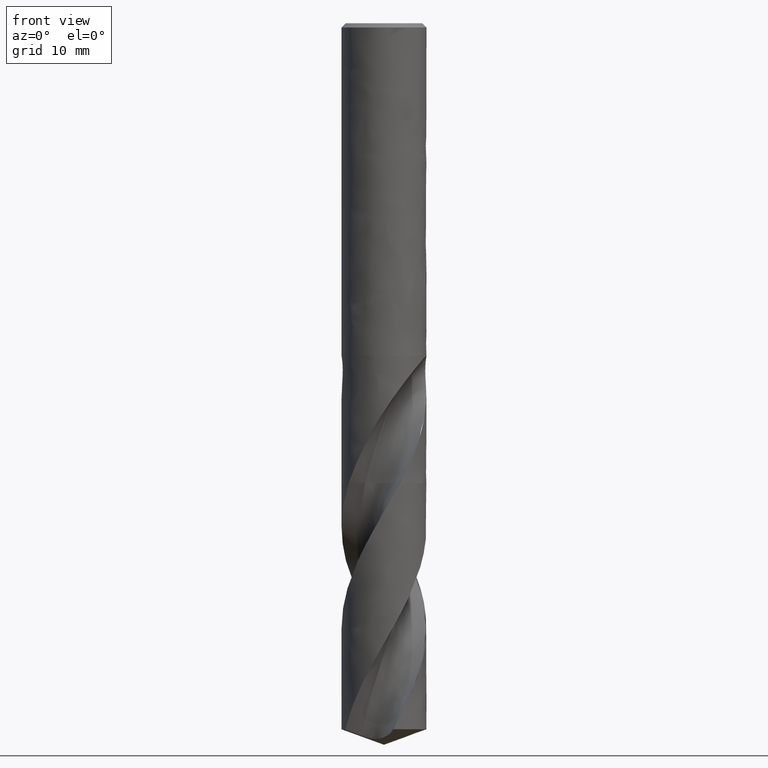
[diagram: clean part render]
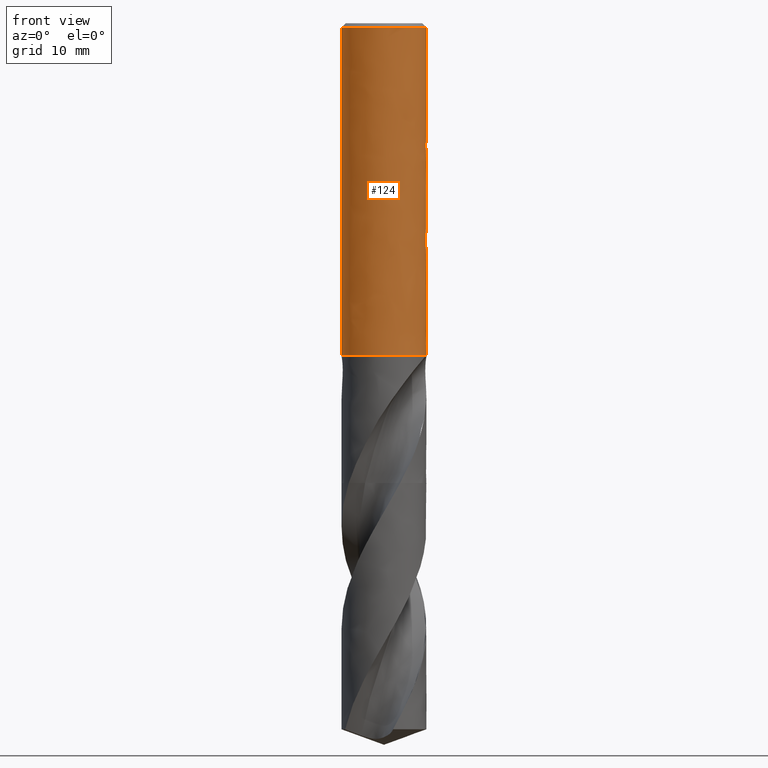
[diagram: same view with one face highlighted and labeled with its STEP entity id]
A machine part, front view. The second image highlights one B-rep face of the part: STEP entity #124.
In plain terms, the highlighted face is a freeform B-spline surface patch.
Its self-contained STEP definition (entity closure, byte-faithful):
#73 = VERTEX_POINT('', #74);
#74 = CARTESIAN_POINT('', (-6., 4.04133443718627E-16, -0.600000000000001));
#90 = EDGE_CURVE('', #73, #73, #91, .T.);
#91 = CIRCLE('', #92, 6.);
#92 = AXIS2_PLACEMENT_3D('', #93, #94, #95);
#93 = CARTESIAN_POINT('', (2.24963967399277E-33, 3.67394039744209E-17, -0.600000000000001));
#94 = DIRECTION('', (3.74939945665464E-33, 6.12323399573677E-17, -1.));
#95 = DIRECTION('', (-1., 6.12323399573677E-17, 0.));
#124 = ADVANCED_FACE('', (#125, #226), #421, .T.);
#125 = FACE_OUTER_BOUND('', #126, .T.);
#126 = EDGE_LOOP('', (#127, #141, #150, #156, #157, #158, #167, #179, #187, #199, #208, #220));
#127 = ORIENTED_EDGE('', *, *, #128, .T.);
#128 = EDGE_CURVE('', #129, #131, #133, .T.);
#129 = VERTEX_POINT('', #130);
#130 = CARTESIAN_POINT('', (-5.98062875212973, 0.481746540412264, -46.98));
#131 = VERTEX_POINT('', #132);
#132 = CARTESIAN_POINT('', (-5.99775532201467, 0.164106968909737, -47.));
#133 = B_SPLINE_CURVE_WITH_KNOTS('', 3, (#134, #135, #136, #137, #138, #139, #140), .UNSPECIFIED., .F., .U., (4, 3, 4), (0., 0.196514336188345, 0.318911880374783), .UNSPECIFIED.);
#134 = CARTESIAN_POINT('', (-5.98062875212918, 0.481746540419091, -46.98));
#135 = CARTESIAN_POINT('', (-5.98588819998738, 0.416453274267725, -46.9800603316474));
#136 = CARTESIAN_POINT('', (-5.99007966787005, 0.351014559865109, -46.9824559364154));
#137 = CARTESIAN_POINT('', (-5.99319043989494, 0.285776750544808, -46.9874786218417));
#138 = CARTESIAN_POINT('', (-5.99512796192898, 0.24514384913015, -46.9906069654187));
#139 = CARTESIAN_POINT('', (-5.99664866857087, 0.204552762444457, -46.9947572615891));
#140 = CARTESIAN_POINT('', (-5.99775532201467, 0.164106968909759, -47.));
#141 = ORIENTED_EDGE('', *, *, #142, .F.);
#142 = EDGE_CURVE('', #143, #131, #145, .T.);
#143 = VERTEX_POINT('', #144);
#144 = CARTESIAN_POINT('', (-6., 3.24531401774049E-15, -47.));
#145 = CIRCLE('', #146, 6.);
#146 = AXIS2_PLACEMENT_3D('', #147, #148, #149);
#147 = CARTESIAN_POINT('', (1.76221774462768E-31, 2.87791997799628E-15, -47.));
#148 = DIRECTION('', (3.74939945665464E-33, 6.12323399573677E-17, -1.));
#149 = DIRECTION('', (-1., 6.12323399573677E-17, 0.));
#150 = ORIENTED_EDGE('', *, *, #151, .T.);
#151 = EDGE_CURVE('', #143, #73, #152, .T.);
#152 = LINE('', #153, #154);
#153 = CARTESIAN_POINT('', (-6., 3.24531401774049E-15, -47.));
#154 = VECTOR('', #155, 46.4);
#155 = DIRECTION('', (0., -2.84118057402186E-15, 46.4));
#156 = ORIENTED_EDGE('', *, *, #90, .T.);
#157 = ORIENTED_EDGE('', *, *, #151, .F.);
#158 = ORIENTED_EDGE('', *, *, #159, .F.);
#159 = EDGE_CURVE('', #160, #143, #162, .T.);
#160 = VERTEX_POINT('', #161);
#161 = CARTESIAN_POINT('', (5.94290858804293, -0.82573453007949, -47.));
#162 = CIRCLE('', #163, 6.);
#163 = AXIS2_PLACEMENT_3D('', #164, #165, #166);
#164 = CARTESIAN_POINT('', (1.76221774462768E-31, 2.87791997799628E-15, -47.));
#165 = DIRECTION('', (3.74939945665464E-33, 6.12323399573677E-17, -1.));
#166 = DIRECTION('', (-1., 6.12323399573677E-17, 0.));
#167 = ORIENTED_EDGE('', *, *, #168, .F.);
#168 = EDGE_CURVE('', #169, #160, #171, .T.);
#169 = VERTEX_POINT('', #170);
#170 = CARTESIAN_POINT('', (5.98021835663005, -0.486814550958604, -46.98));
#171 = B_SPLINE_CURVE_WITH_KNOTS('', 3, (#172, #173, #174, #175, #176, #177, #178), .UNSPECIFIED., .F., .U., (4, 3, 4), (0., 0.19782131943654, 0.341714605451785), .UNSPECIFIED.);
#172 = CARTESIAN_POINT('', (5.98021835662527, -0.486814551017509, -46.98));
#173 = CARTESIAN_POINT('', (5.97486823128955, -0.552537561301496, -46.9800606689926));
#174 = CARTESIAN_POINT('', (5.96842881413748, -0.618211458208269, -46.9824789133083));
#175 = CARTESIAN_POINT('', (5.96093382180986, -0.683570019824801, -46.9869761475751));
#176 = CARTESIAN_POINT('', (5.95548203795889, -0.731111196008542, -46.9902473916375));
#177 = CARTESIAN_POINT('', (5.94946793326626, -0.778526150582558, -46.9946213093292));
#178 = CARTESIAN_POINT('', (5.94290858804294, -0.825734530079389, -47.));
#179 = ORIENTED_EDGE('', *, *, #180, .F.);
#180 = EDGE_CURVE('', #181, #169, #183, .T.);
#181 = VERTEX_POINT('', #182);
#182 = CARTESIAN_POINT('', (5.98062875213018, -0.481746540406684, -46.98));
#183 = LINE('', #184, #185);
#184 = CARTESIAN_POINT('', (5.98062875213018, -0.481746540406684, -46.98));
#185 = VECTOR('', #186, 0.00508459982898296);
#186 = DIRECTION('', (-0.000410395500133554, -0.00506801055191913, 0.));
#187 = ORIENTED_EDGE('', *, *, #188, .T.);
#188 = EDGE_CURVE('', #181, #189, #191, .T.);
#189 = VERTEX_POINT('', #190);
#190 = CARTESIAN_POINT('', (5.99775532201467, -0.164106968909747, -47.));
#191 = B_SPLINE_CURVE_WITH_KNOTS('', 3, (#192, #193, #194, #195, #196, #197, #198), .UNSPECIFIED., .F., .U., (4, 3, 4), (0., 0.196514336188347, 0.318911880377001), .UNSPECIFIED.);
#192 = CARTESIAN_POINT('', (5.980628752129, -0.481746540421313, -46.98));
#193 = CARTESIAN_POINT('', (5.98588819998723, -0.416453274269948, -46.9800603316473));
#194 = CARTESIAN_POINT('', (5.99007966786992, -0.351014559867332, -46.9824559364153));
#195 = CARTESIAN_POINT('', (5.99319043989483, -0.285776750547027, -46.9874786218415));
#196 = CARTESIAN_POINT('', (5.99512796192892, -0.245143849131631, -46.9906069654185));
#197 = CARTESIAN_POINT('', (5.99664866857085, -0.2045527624452, -46.994757261589));
#198 = CARTESIAN_POINT('', (5.99775532201466, -0.164106968909769, -47.));
#199 = ORIENTED_EDGE('', *, *, #200, .F.);
#200 = EDGE_CURVE('', #201, #189, #203, .T.);
#201 = VERTEX_POINT('', #202);
#202 = CARTESIAN_POINT('', (-5.94290858804293, 0.825734530079485, -47.));
#203 = CIRCLE('', #204, 6.);
#204 = AXIS2_PLACEMENT_3D('', #205, #206, #207);
#205 = CARTESIAN_POINT('', (1.76221774462768E-31, 2.87791997799628E-15, -47.));
#206 = DIRECTION('', (3.74939945665464E-33, 6.12323399573677E-17, -1.));
#207 = DIRECTION('', (-1., 6.12323399573677E-17, 0.));
#208 = ORIENTED_EDGE('', *, *, #209, .F.);
#209 = EDGE_CURVE('', #210, #201, #212, .T.);
#210 = VERTEX_POINT('', #211);
#211 = CARTESIAN_POINT('', (-5.9802183566305, 0.486814550953045, -46.98));
#212 = B_SPLINE_CURVE_WITH_KNOTS('', 3, (#213, #214, #215, #216, #217, #218, #219), .UNSPECIFIED., .F., .U., (4, 3, 4), (0., 0.197821319436538, 0.341714605449971), .UNSPECIFIED.);
#213 = CARTESIAN_POINT('', (-5.98021835662512, 0.486814551019392, -46.98));
#214 = CARTESIAN_POINT('', (-5.97486823128938, 0.552537561303378, -46.9800606689927));
#215 = CARTESIAN_POINT('', (-5.96842881413729, 0.618211458210146, -46.9824789133083));
#216 = CARTESIAN_POINT('', (-5.96093382180965, 0.683570019826673, -46.9869761475752));
#217 = CARTESIAN_POINT('', (-5.95548203795874, 0.731111196009811, -46.9902473916376));
#218 = CARTESIAN_POINT('', (-5.94946793326618, 0.778526150583228, -46.9946213093293));
#219 = CARTESIAN_POINT('', (-5.94290858804293, 0.825734530079464, -47.));
#220 = ORIENTED_EDGE('', *, *, #221, .F.);
#221 = EDGE_CURVE('', #129, #210, #222, .T.);
#222 = LINE('', #223, #224);
#223 = CARTESIAN_POINT('', (-5.98062875212973, 0.481746540412264, -46.98));
#224 = VECTOR('', #225, 0.0050845998178086);
#225 = DIRECTION('', (0.000410395499231164, 0.00506801054078126, 0.));
#226 = FACE_BOUND('', #227, .T.);
#227 = EDGE_LOOP('', (#228, #320, #328, #415));
#228 = ORIENTED_EDGE('', *, *, #229, .F.);
#229 = EDGE_CURVE('', #230, #232, #234, .T.);
#230 = VERTEX_POINT('', #231);
#231 = CARTESIAN_POINT('', (-4.07921561087423, 4.4, -18.5));
#232 = VERTEX_POINT('', #233);
#233 = CARTESIAN_POINT('', (4.07921561087423, 4.4, -18.5));
#234 = B_SPLINE_CURVE_WITH_KNOTS('', 3, (#235, #236, #237, #238, #239, #240, #241, #242, #243, #244, #245, #246, #247, #248, #249, #250, #251, #252, #253, #254, #255, #256, #257, #258, #259, #260, #261, #262, #263, #264, #265, #266, #267, #268, #269, #270, #271, #272, #273, #274, #275, #276, #277, #278, #279, #280, #281, #282, #283, #284, #285, #286, #287, #288, #289, #290, #291, #292, #293, #294, #295, #296, #297, #298, #299, #300, #301, #302, #303, #304, #305, #306, #307, #308, #309, #310, #311, #312, #313, #314, #315, #316, #317, #318, #319), .UNSPECIFIED., .F., .U., (4, 3, 3, 3, 3, 3, 3, 3, 3, 3, 3, 3, 3, 3, 3, 3, 3, 3, 3, 3, 3, 3, 3, 3, 3, 3, 3, 3, 4), (0., 0.252528164981998, 0.696302962445131, 1.1402945821051, 1.58454104344382, 2.02908503294033, 2.47397183993456, 2.77031065522298, 3.06676568600972, 3.36334316241506, 3.66004733001568, 3.95687982725979, 4.25383918654579, 4.55092056662183, 4.8466816243795, 5.14244268213717, 5.43952406221321, 5.73648342149921, 6.03331591874332, 6.33002008634393, 6.62659756274928, 6.92305259353602, 7.21939140882444, 7.66427821581867, 8.10882220531517, 8.55306866665389, 8.99706028631386, 9.44083508377699, 9.693363248759), .UNSPECIFIED.);
#235 = CARTESIAN_POINT('', (-4.07921561087423, 4.4, -18.5));
#236 = CARTESIAN_POINT('', (-4.02845131220746, 4.44706329990831, -18.4521080380756));
#237 = CARTESIAN_POINT('', (-3.97655807735762, 4.4935394565002, -18.4048135575308));
#238 = CARTESIAN_POINT('', (-3.92353945924903, 4.53936538645173, -18.3581807524223));
#239 = CARTESIAN_POINT('', (-3.8303683608308, 4.61989657307895, -18.2762316215456));
#240 = CARTESIAN_POINT('', (-3.73364869199152, 4.69848132293275, -18.1962631991195));
#241 = CARTESIAN_POINT('', (-3.6334318436559, 4.77474324309775, -18.1186585053574));
#242 = CARTESIAN_POINT('', (-3.53316603076136, 4.85104242377677, -18.0410158950207));
#243 = CARTESIAN_POINT('', (-3.42929151463678, 4.92509751242185, -17.9656568893282));
#244 = CARTESIAN_POINT('', (-3.32191613869429, 4.99648608198631, -17.8930113531657));
#245 = CARTESIAN_POINT('', (-3.21447913158614, 5.06791562706045, -17.8203241200216));
#246 = CARTESIAN_POINT('', (-3.10340403823706, 5.13676248497672, -17.7502650484231));
#247 = CARTESIAN_POINT('', (-2.98887732179034, 5.20255825102305, -17.6833107904681));
#248 = CARTESIAN_POINT('', (-2.8742739025988, 5.26839808290842, -17.6163116907895));
#249 = CARTESIAN_POINT('', (-2.75605059652716, 5.33127457957416, -17.5523281029383));
#250 = CARTESIAN_POINT('', (-2.63449928745334, 5.39067838999959, -17.4918783462786));
#251 = CARTESIAN_POINT('', (-2.51285424206409, 5.45012801066231, -17.4313819727829));
#252 = CARTESIAN_POINT('', (-2.38767641856268, 5.5061944341025, -17.3743283657927));
#253 = CARTESIAN_POINT('', (-2.2593928894653, 5.55834001937932, -17.3212646327041));
#254 = CARTESIAN_POINT('', (-2.17394331344712, 5.59307416011022, -17.2859189143078));
#255 = CARTESIAN_POINT('', (-2.08703253413476, 5.62610405559013, -17.2523074484784));
#256 = CARTESIAN_POINT('', (-1.99882607577488, 5.65726915735874, -17.2205936105159));
#257 = CARTESIAN_POINT('', (-1.91058502539741, 5.68844648117739, -17.188867335305));
#258 = CARTESIAN_POINT('', (-1.82096798723843, 5.71778510232651, -17.159012137524));
#259 = CARTESIAN_POINT('', (-1.73017554338986, 5.74512772608718, -17.1311880814419));
#260 = CARTESIAN_POINT('', (-1.63934559929405, 5.77248164324527, -17.1033525331151));
#261 = CARTESIAN_POINT('', (-1.54725106907462, 5.79786399616015, -17.0775232631379));
#262 = CARTESIAN_POINT('', (-1.45412928109495, 5.82112601082148, -17.0538516650431));
#263 = CARTESIAN_POINT('', (-1.360967713592, 5.84439796248975, -17.0301699549766));
#264 = CARTESIAN_POINT('', (-1.26668101162223, 5.86557151484437, -17.008623591565));
#265 = CARTESIAN_POINT('', (-1.17154310133609, 5.88451244893847, -16.9893491570011));
#266 = CARTESIAN_POINT('', (-1.07636404227133, 5.90346157531157, -16.9700663859134));
#267 = CARTESIAN_POINT('', (-0.980227817186135, 5.9201966535508, -16.9530366465752));
#268 = CARTESIAN_POINT('', (-0.883442451457367, 5.93460440425165, -16.9383752129459));
#269 = CARTESIAN_POINT('', (-0.786615721022123, 5.94901831262287, -16.9237075132258));
#270 = CARTESIAN_POINT('', (-0.689026914371761, 5.96111925406702, -16.9113935057503));
#271 = CARTESIAN_POINT('', (-0.591013008611254, 5.97082101755297, -16.9015209195021));
#272 = CARTESIAN_POINT('', (-0.492958828874387, 5.98052676749973, -16.8916442766019));
#273 = CARTESIAN_POINT('', (-0.394361221890409, 5.9878427681628, -16.8841994602402));
#274 = CARTESIAN_POINT('', (-0.295578376007082, 5.99271502940338, -16.8792414111813));
#275 = CARTESIAN_POINT('', (-0.197234551903102, 5.99756563679524, -16.8743053972389));
#276 = CARTESIAN_POINT('', (-0.0985870192525581, 6., -16.8718281712446));
#277 = CARTESIAN_POINT('', (-1.0408164986578E-15, 6., -16.8718281712446));
#278 = CARTESIAN_POINT('', (0.098587019252556, 6., -16.8718281712446));
#279 = CARTESIAN_POINT('', (0.197234551903099, 5.99756563679524, -16.8743053972389));
#280 = CARTESIAN_POINT('', (0.29557837600708, 5.99271502940338, -16.8792414111813));
#281 = CARTESIAN_POINT('', (0.394361221890407, 5.9878427681628, -16.8841994602402));
#282 = CARTESIAN_POINT('', (0.492958828874384, 5.98052676749973, -16.8916442766019));
#283 = CARTESIAN_POINT('', (0.591013008611251, 5.97082101755297, -16.9015209195021));
#284 = CARTESIAN_POINT('', (0.689026914371758, 5.96111925406702, -16.9113935057503));
#285 = CARTESIAN_POINT('', (0.786615721022121, 5.94901831262287, -16.9237075132258));
#286 = CARTESIAN_POINT('', (0.883442451457365, 5.93460440425165, -16.9383752129459));
#287 = CARTESIAN_POINT('', (0.980227817186133, 5.9201966535508, -16.9530366465752));
#288 = CARTESIAN_POINT('', (1.07636404227133, 5.90346157531157, -16.9700663859134));
#289 = CARTESIAN_POINT('', (1.17154310133609, 5.88451244893847, -16.9893491570011));
#290 = CARTESIAN_POINT('', (1.26668101162223, 5.86557151484437, -17.008623591565));
#291 = CARTESIAN_POINT('', (1.360967713592, 5.84439796248974, -17.0301699549766));
#292 = CARTESIAN_POINT('', (1.45412928109495, 5.82112601082148, -17.0538516650431));
#293 = CARTESIAN_POINT('', (1.54725106907462, 5.79786399616015, -17.0775232631379));
#294 = CARTESIAN_POINT('', (1.63934559929405, 5.77248164324527, -17.1033525331151));
#295 = CARTESIAN_POINT('', (1.73017554338986, 5.74512772608718, -17.1311880814419));
#296 = CARTESIAN_POINT('', (1.82096798723844, 5.71778510232651, -17.159012137524));
#297 = CARTESIAN_POINT('', (1.91058502539741, 5.68844648117739, -17.188867335305));
#298 = CARTESIAN_POINT('', (1.99882607577488, 5.65726915735874, -17.2205936105159));
#299 = CARTESIAN_POINT('', (2.08703253413476, 5.62610405559013, -17.2523074484784));
#300 = CARTESIAN_POINT('', (2.17394331344712, 5.59307416011022, -17.2859189143078));
#301 = CARTESIAN_POINT('', (2.2593928894653, 5.55834001937932, -17.3212646327041));
#302 = CARTESIAN_POINT('', (2.38767641856268, 5.5061944341025, -17.3743283657927));
#303 = CARTESIAN_POINT('', (2.51285424206409, 5.45012801066231, -17.4313819727829));
#304 = CARTESIAN_POINT('', (2.63449928745334, 5.39067838999959, -17.4918783462786));
#305 = CARTESIAN_POINT('', (2.75605059652716, 5.33127457957415, -17.5523281029383));
#306 = CARTESIAN_POINT('', (2.8742739025988, 5.26839808290842, -17.6163116907895));
#307 = CARTESIAN_POINT('', (2.98887732179034, 5.20255825102305, -17.6833107904681));
#308 = CARTESIAN_POINT('', (3.10340403823706, 5.13676248497672, -17.7502650484231));
#309 = CARTESIAN_POINT('', (3.21447913158614, 5.06791562706045, -17.8203241200216));
#310 = CARTESIAN_POINT('', (3.32191613869428, 4.99648608198631, -17.8930113531657));
#311 = CARTESIAN_POINT('', (3.42929151463677, 4.92509751242185, -17.9656568893282));
#312 = CARTESIAN_POINT('', (3.53316603076136, 4.85104242377677, -18.0410158950207));
#313 = CARTESIAN_POINT('', (3.63343184365589, 4.77474324309775, -18.1186585053574));
#314 = CARTESIAN_POINT('', (3.73364869199151, 4.69848132293276, -18.1962631991195));
#315 = CARTESIAN_POINT('', (3.83036836083079, 4.61989657307896, -18.2762316215456));
#316 = CARTESIAN_POINT('', (3.92353945924902, 4.53936538645173, -18.3581807524223));
#317 = CARTESIAN_POINT('', (3.97655807735761, 4.4935394565002, -18.4048135575308));
#318 = CARTESIAN_POINT('', (4.02845131220746, 4.44706329990831, -18.4521080380756));
#319 = CARTESIAN_POINT('', (4.07921561087423, 4.4, -18.5));
#320 = ORIENTED_EDGE('', *, *, #321, .T.);
#321 = EDGE_CURVE('', #230, #322, #324, .T.);
#322 = VERTEX_POINT('', #323);
#323 = CARTESIAN_POINT('', (-4.07921561087423, 4.4, -26.5));
#324 = LINE('', #325, #326);
#325 = CARTESIAN_POINT('', (-4.07921561087423, 4.4, -18.5));
#326 = VECTOR('', #327, 8.);
#327 = DIRECTION('', (0., 0., -8.));
#328 = ORIENTED_EDGE('', *, *, #329, .T.);
#329 = EDGE_CURVE('', #322, #330, #332, .T.);
#330 = VERTEX_POINT('', #331);
#331 = CARTESIAN_POINT('', (4.07921561087423, 4.4, -26.5));
#332 = B_SPLINE_CURVE_WITH_KNOTS('', 3, (#333, #334, #335, #336, #337, #338, #339, #340, #341, #342, #343, #344, #345, #346, #347, #348, #349, #350, #351, #352, #353, #354, #355, #356, #357, #358, #359, #360, #361, #362, #363, #364, #365, #366, #367, #368, #369, #370, #371, #372, #373, #374, #375, #376, #377, #378, #379, #380, #381, #382, #383, #384, #385, #386, #387, #388, #389, #390, #391, #392, #393, #394, #395, #396, #397, #398, #399, #400, #401, #402, #403, #404, #405, #406, #407, #408, #409, #410, #411, #412, #413, #414), .UNSPECIFIED., .F., .U., (4, 3, 3, 3, 3, 3, 3, 3, 3, 3, 3, 3, 3, 3, 3, 3, 3, 3, 3, 3, 3, 3, 3, 3, 3, 3, 3, 4), (0., 0.443342399663825, 0.88654563683321, 1.32958786504548, 1.77244318478925, 2.21508166617876, 2.65746991921297, 3.0995725400833, 3.54135477630389, 3.83602657676747, 4.13058610128575, 4.42503187144969, 4.62151501666331, 4.84649677051965, 5.14225782827732, 5.43933920835336, 5.73629856763935, 6.03313106488347, 6.32983523248408, 6.62641270888943, 6.92286773967617, 7.21920655496459, 7.66409336195882, 8.10863735145532, 8.55288381279405, 8.99687543245401, 9.44065022991715, 9.69317839489915), .UNSPECIFIED.);
#333 = CARTESIAN_POINT('', (-4.07921561087423, 4.4, -26.5));
#334 = CARTESIAN_POINT('', (-3.99009301344126, 4.48262506607505, -26.5840798780828));
#335 = CARTESIAN_POINT('', (-3.89746999004796, 4.56345861274838, -26.6663366927777));
#336 = CARTESIAN_POINT('', (-3.80137376549427, 4.64215009397717, -26.7464137258401));
#337 = CARTESIAN_POINT('', (-3.70530770496353, 4.72081687442654, -26.8264656232067));
#338 = CARTESIAN_POINT('', (-3.60567507499127, 4.79742012425749, -26.9044176565604));
#339 = CARTESIAN_POINT('', (-3.50254877718793, 4.87156566859361, -26.9798687106327));
#340 = CARTESIAN_POINT('', (-3.39945994359122, 4.94568427698756, -27.0552923544912));
#341 = CARTESIAN_POINT('', (-3.2927625473149, 5.01742999477435, -27.1283013273252));
#342 = CARTESIAN_POINT('', (-3.18259405082665, 5.08636364288317, -27.1984487172653));
#343 = CARTESIAN_POINT('', (-3.07247203167994, 5.15526820960476, -27.2685665137707));
#344 = CARTESIAN_POINT('', (-2.95873778715689, 5.22145138140552, -27.3359149986855));
#345 = CARTESIAN_POINT('', (-2.84161670673265, 5.28443133099668, -27.4000038609985));
#346 = CARTESIAN_POINT('', (-2.72455297312394, 5.34738044327368, -27.4640613430326));
#347 = CARTESIAN_POINT('', (-2.60392993007726, 5.40722166596681, -27.5249562136497));
#348 = CARTESIAN_POINT('', (-2.4800878796862, 5.4634388537839, -27.5821632395845));
#349 = CARTESIAN_POINT('', (-2.35631583855528, 5.51962426141233, -27.6393379257643));
#350 = CARTESIAN_POINT('', (-2.22911594889546, 5.57228333564817, -27.6929241890138));
#351 = CARTESIAN_POINT('', (-2.09897135694728, 5.62088242562654, -27.7423789822675));
#352 = CARTESIAN_POINT('', (-1.96891079408703, 5.66945013714235, -27.7918018445657));
#353 = CARTESIAN_POINT('', (-1.83565628537043, 5.71405431098098, -27.8371913816214));
#354 = CARTESIAN_POINT('', (-1.69985748661981, 5.75417105456425, -27.8780144764737));
#355 = CARTESIAN_POINT('', (-1.56415709907174, 5.79425872618948, -27.9188079874865));
#356 = CARTESIAN_POINT('', (-1.42562096784116, 5.82994915689483, -27.9551268336306));
#357 = CARTESIAN_POINT('', (-1.28507687616644, 5.86076594161075, -27.9864862215852));
#358 = CARTESIAN_POINT('', (-1.19133299707205, 5.88132094969443, -28.0074031497737));
#359 = CARTESIAN_POINT('', (-1.09657649444596, 5.89973707876045, -28.0261435388611));
#360 = CARTESIAN_POINT('', (-1.00109588724331, 5.91589443994267, -28.042585389051));
#361 = CARTESIAN_POINT('', (-0.905651660092697, 5.93204564484188, -28.0590209745619));
#362 = CARTESIAN_POINT('', (-0.809376785197196, 5.94595753641382, -28.0731778182757));
#363 = CARTESIAN_POINT('', (-0.712589485964355, 5.95753440816695, -28.0849585285592));
#364 = CARTESIAN_POINT('', (-0.615839564496669, 5.96910680911041, -28.0967346893137));
#365 = CARTESIAN_POINT('', (-0.518464684260815, 5.97835919784588, -28.1061499884935));
#366 = CARTESIAN_POINT('', (-0.420806179111686, 5.98522532237689, -28.1131370075773));
#367 = CARTESIAN_POINT('', (-0.355638830170395, 5.98980707521555, -28.1177994331387));
#368 = CARTESIAN_POINT('', (-0.290302106735298, 5.99333029033027, -28.1213846828865));
#369 = CARTESIAN_POINT('', (-0.224901311003026, 5.99578346843089, -28.123881055058));
#370 = CARTESIAN_POINT('', (-0.15001455310097, 5.9985924641389, -28.1267395098573));
#371 = CARTESIAN_POINT('', (-0.0749939179521149, 6., -28.1281718287554));
#372 = CARTESIAN_POINT('', (-1.0408164986578E-15, 6., -28.1281718287554));
#373 = CARTESIAN_POINT('', (0.0985870192525558, 6., -28.1281718287554));
#374 = CARTESIAN_POINT('', (0.197234551903099, 5.99756563679524, -28.1256946027611));
#375 = CARTESIAN_POINT('', (0.29557837600708, 5.99271502940338, -28.1207585888187));
#376 = CARTESIAN_POINT('', (0.394361221890407, 5.9878427681628, -28.1158005397598));
#377 = CARTESIAN_POINT('', (0.492958828874384, 5.98052676749973, -28.1083557233981));
#378 = CARTESIAN_POINT('', (0.591013008611251, 5.97082101755297, -28.0984790804979));
#379 = CARTESIAN_POINT('', (0.689026914371758, 5.96111925406702, -28.0886064942497));
#380 = CARTESIAN_POINT('', (0.786615721022121, 5.94901831262287, -28.0762924867742));
#381 = CARTESIAN_POINT('', (0.883442451457365, 5.93460440425165, -28.0616247870541));
#382 = CARTESIAN_POINT('', (0.980227817186133, 5.9201966535508, -28.0469633534248));
#383 = CARTESIAN_POINT('', (1.07636404227133, 5.90346157531157, -28.0299336140866));
#384 = CARTESIAN_POINT('', (1.17154310133609, 5.88451244893847, -28.0106508429989));
#385 = CARTESIAN_POINT('', (1.26668101162223, 5.86557151484437, -27.991376408435));
#386 = CARTESIAN_POINT('', (1.360967713592, 5.84439796248974, -27.9698300450234));
#387 = CARTESIAN_POINT('', (1.45412928109495, 5.82112601082148, -27.9461483349569));
#388 = CARTESIAN_POINT('', (1.54725106907462, 5.79786399616015, -27.9224767368621));
#389 = CARTESIAN_POINT('', (1.63934559929405, 5.77248164324527, -27.8966474668849));
#390 = CARTESIAN_POINT('', (1.73017554338986, 5.74512772608718, -27.8688119185581));
#391 = CARTESIAN_POINT('', (1.82096798723844, 5.71778510232651, -27.840987862476));
#392 = CARTESIAN_POINT('', (1.91058502539741, 5.68844648117739, -27.811132664695));
#393 = CARTESIAN_POINT('', (1.99882607577488, 5.65726915735874, -27.7794063894841));
#394 = CARTESIAN_POINT('', (2.08703253413476, 5.62610405559013, -27.7476925515216));
#395 = CARTESIAN_POINT('', (2.17394331344712, 5.59307416011022, -27.7140810856922));
#396 = CARTESIAN_POINT('', (2.2593928894653, 5.55834001937932, -27.6787353672959));
#397 = CARTESIAN_POINT('', (2.38767641856268, 5.5061944341025, -27.6256716342073));
#398 = CARTESIAN_POINT('', (2.51285424206409, 5.45012801066231, -27.5686180272171));
#399 = CARTESIAN_POINT('', (2.63449928745334, 5.39067838999959, -27.5081216537214));
#400 = CARTESIAN_POINT('', (2.75605059652716, 5.33127457957415, -27.4476718970617));
#401 = CARTESIAN_POINT('', (2.8742739025988, 5.26839808290842, -27.3836883092105));
#402 = CARTESIAN_POINT('', (2.98887732179034, 5.20255825102305, -27.3166892095319));
#403 = CARTESIAN_POINT('', (3.10340403823706, 5.13676248497672, -27.2497349515769));
#404 = CARTESIAN_POINT('', (3.21447913158614, 5.06791562706045, -27.1796758799784));
#405 = CARTESIAN_POINT('', (3.32191613869429, 4.99648608198631, -27.1069886468343));
#406 = CARTESIAN_POINT('', (3.42929151463678, 4.92509751242185, -27.0343431106718));
#407 = CARTESIAN_POINT('', (3.53316603076136, 4.85104242377677, -26.9589841049793));
#408 = CARTESIAN_POINT('', (3.6334318436559, 4.77474324309775, -26.8813414946426));
#409 = CARTESIAN_POINT('', (3.73364869199152, 4.69848132293276, -26.8037368008805));
#410 = CARTESIAN_POINT('', (3.83036836083079, 4.61989657307895, -26.7237683784544));
#411 = CARTESIAN_POINT('', (3.92353945924903, 4.53936538645173, -26.6418192475777));
#412 = CARTESIAN_POINT('', (3.97655807735762, 4.4935394565002, -26.5951864424692));
#413 = CARTESIAN_POINT('', (4.02845131220746, 4.44706329990831, -26.5478919619244));
#414 = CARTESIAN_POINT('', (4.07921561087423, 4.4, -26.5));
#415 = ORIENTED_EDGE('', *, *, #416, .F.);
#416 = EDGE_CURVE('', #232, #330, #417, .T.);
#417 = LINE('', #418, #419);
#418 = CARTESIAN_POINT('', (4.07921561087423, 4.4, -18.5));
#419 = VECTOR('', #420, 8.);
#420 = DIRECTION('', (0., 8.88178419700125E-16, -8.));
#421 = (
   BOUNDED_SURFACE ()
   B_SPLINE_SURFACE (1, 2, ((#422, #423, #424, #425, #426, #427, #428, #429, #430), (#431, #432, #433, #434, #435, #436, #437, #438, #439)), .UNSPECIFIED., .F., .T., .U.)
   B_SPLINE_SURFACE_WITH_KNOTS ((2, 2), (3, 2, 2, 2, 3), (-0.148514851485149, 1.), (0., 0.25, 0.5, 0.75, 1.), .UNSPECIFIED.)
   GEOMETRIC_REPRESENTATION_ITEM ()
   RATIONAL_B_SPLINE_SURFACE (((1., 0.707106781186548, 1., 0.707106781186548, 1., 0.707106781186548, 1., 0.707106781186548, 1.), (1., 0.707106781186548, 1., 0.707106781186548, 1., 0.707106781186548, 1., 0.707106781186548, 1.)))
   REPRESENTATION_ITEM ('')
   SURFACE ()
);
#422 = CARTESIAN_POINT('', (-6., 3.24531401774049E-15, -47.));
#423 = CARTESIAN_POINT('', (-6., 6., -47.));
#424 = CARTESIAN_POINT('', (-4.44089209850063E-15, 6.00000000000001, -47.));
#425 = CARTESIAN_POINT('', (5.99999999999999, 6.00000000000001, -47.));
#426 = CARTESIAN_POINT('', (6., 1.05727859802665E-14, -47.));
#427 = CARTESIAN_POINT('', (6., -5.99999999999999, -47.));
#428 = CARTESIAN_POINT('', (3.62136794351382E-15, -5.99999999999999, -47.));
#429 = CARTESIAN_POINT('', (-6., -6., -47.));
#430 = CARTESIAN_POINT('', (-6., 3.24531401774049E-15, -47.));
#431 = CARTESIAN_POINT('', (-6., 4.04133443718627E-16, -0.600000000000001));
#432 = CARTESIAN_POINT('', (-6., 6., -0.600000000000001));
#433 = CARTESIAN_POINT('', (-4.44089209850063E-15, 6., -0.600000000000001));
#434 = CARTESIAN_POINT('', (5.99999999999999, 6.00000000000001, -0.600000000000001));
#435 = CARTESIAN_POINT('', (6., 7.73160540624466E-15, -0.600000000000001));
#436 = CARTESIAN_POINT('', (6., -5.99999999999999, -0.600000000000002));
#437 = CARTESIAN_POINT('', (3.62136794351382E-15, -6., -0.600000000000002));
#438 = CARTESIAN_POINT('', (-6., -6., -0.600000000000002));
#439 = CARTESIAN_POINT('', (-6., 4.04133443718627E-16, -0.600000000000001));